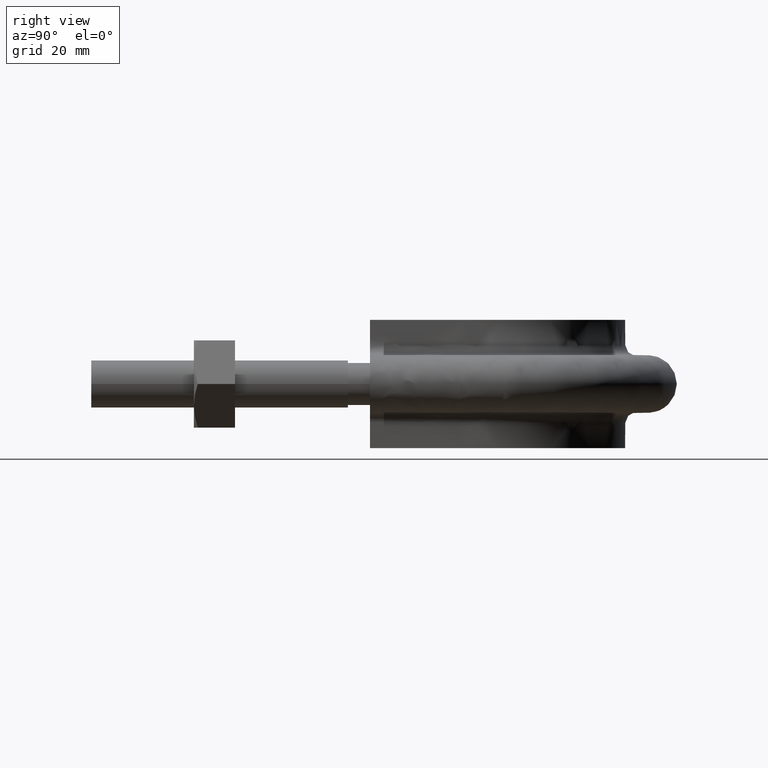
[diagram: clean part render]
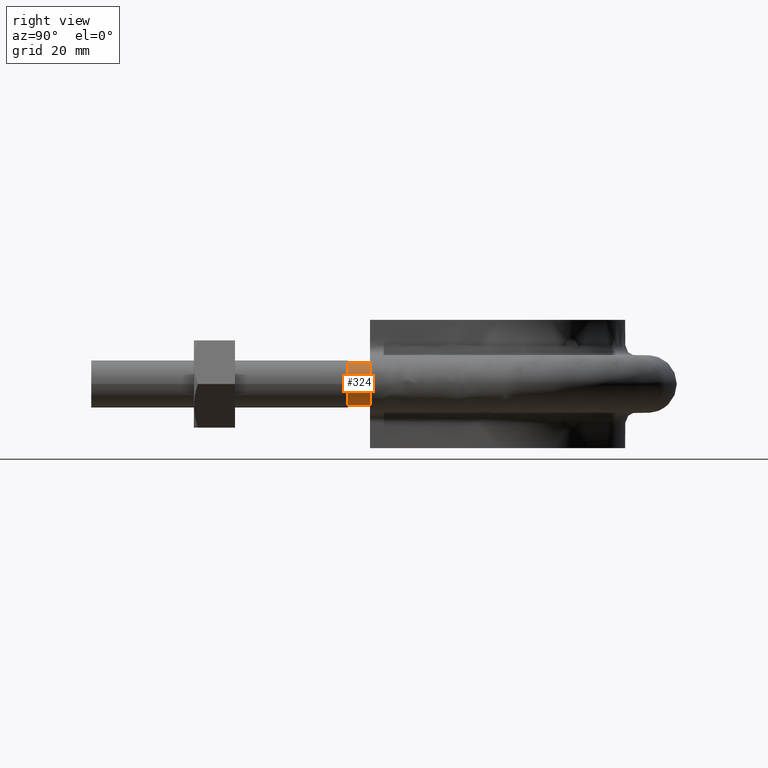
[diagram: same view with one face highlighted and labeled with its STEP entity id]
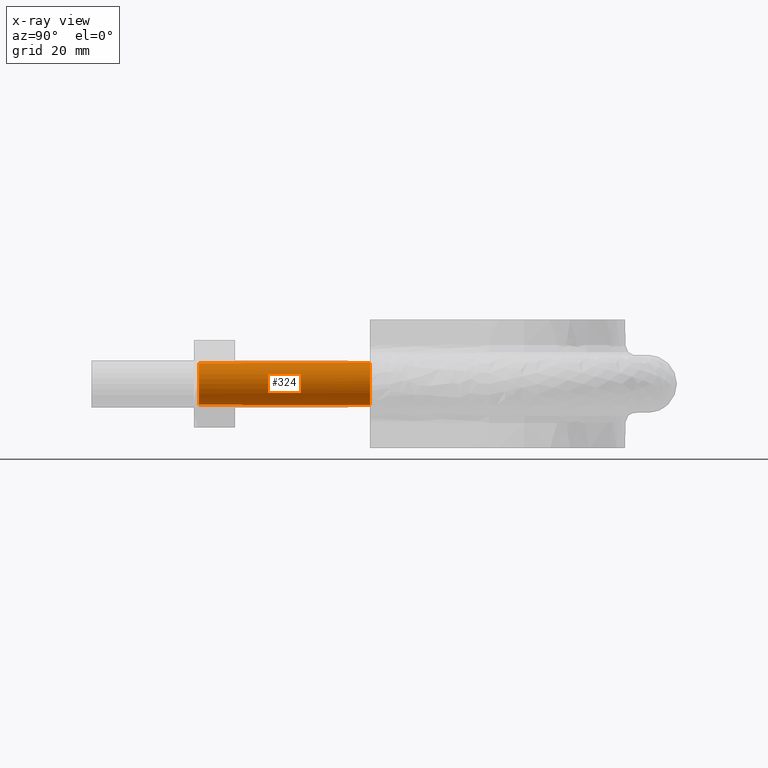
[diagram: x-ray of the same camera — body ghosted, the highlighted face saturated]
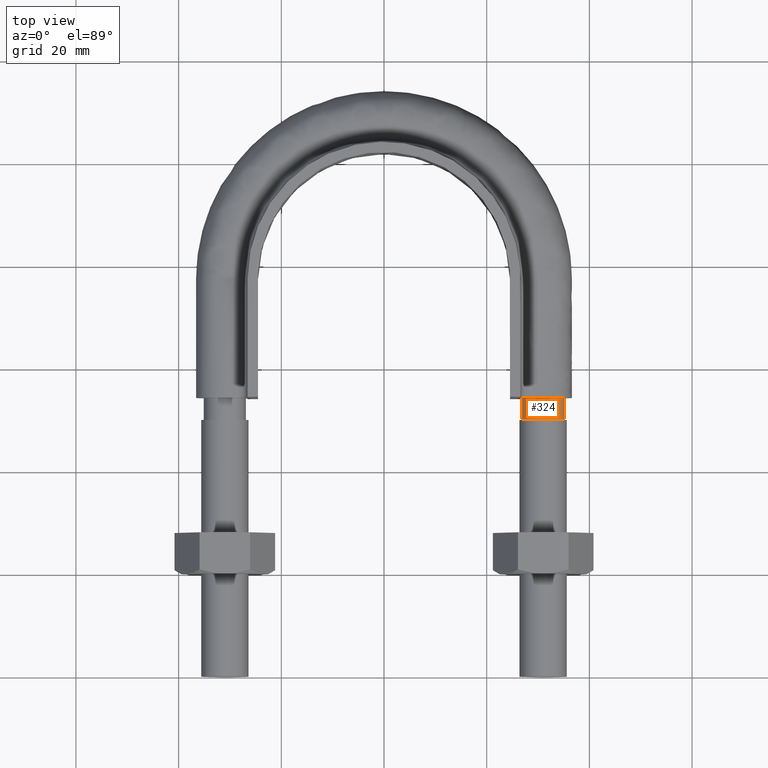
[diagram: same view with one face highlighted and labeled with its STEP entity id]
A machine part, right view. The second image highlights one B-rep face of the part: STEP entity #324.
The next image is the same camera in x-ray: the body ghosted, the highlighted face saturated — about 0% of this face is hidden behind the body in this view.
A second angle (top view) of the same face is appended — the face is thin or edge-on in the first view.
In plain terms, the highlighted cylindrical surface (bore or boss wall) has radius 4.1 mm, axis along (0, 1, 0).
Its self-contained STEP definition (entity closure, byte-faithful):
#324 = ADVANCED_FACE( '', ( #415, #416 ), #417, .T. );
#415 = FACE_OUTER_BOUND( '', #1265, .T. );
#416 = FACE_OUTER_BOUND( '', #1266, .T. );
#417 = CYLINDRICAL_SURFACE( '', #1267, 4.10000000000000 );
#1265 = EDGE_LOOP( '', ( #1635, #1636, #1637, #1638, #1639, #1640, #1641 ) );
#1266 = EDGE_LOOP( '', ( #1642 ) );
#1267 = AXIS2_PLACEMENT_3D( '', #1643, #1644, #1645 );
#1635 = ORIENTED_EDGE( '', *, *, #2129, .T. );
#1636 = ORIENTED_EDGE( '', *, *, #2130, .T. );
#1637 = ORIENTED_EDGE( '', *, *, #2131, .T. );
#1638 = ORIENTED_EDGE( '', *, *, #2125, .T. );
#1639 = ORIENTED_EDGE( '', *, *, #2132, .T. );
#1640 = ORIENTED_EDGE( '', *, *, #2133, .T. );
#1641 = ORIENTED_EDGE( '', *, *, #2134, .T. );
#1642 = ORIENTED_EDGE( '', *, *, #2135, .F. );
#1643 = CARTESIAN_POINT( '', ( 31.0000000000000, 54.3000000000000, 1.03938464280674E-014 ) );
#1644 = DIRECTION( '', ( 2.44921270764475E-016, 1.00000000000000, 3.06151588455594E-016 ) );
#1645 = DIRECTION( '', ( 1.00000000000000, -2.44921270764475E-016, -3.74915180455534E-032 ) );
#2125 = EDGE_CURVE( '', #2287, #2288, #2289, .T. );
#2129 = EDGE_CURVE( '', #2295, #2296, #2297, .T. );
#2130 = EDGE_CURVE( '', #2296, #2298, #2299, .T. );
#2131 = EDGE_CURVE( '', #2298, #2287, #2300, .T. );
#2132 = EDGE_CURVE( '', #2288, #2301, #2302, .T. );
#2133 = EDGE_CURVE( '', #2301, #2303, #2304, .T. );
#2134 = EDGE_CURVE( '', #2303, #2295, #2305, .T. );
#2135 = EDGE_CURVE( '', #2306, #2306, #2307, .T. );
#2287 = VERTEX_POINT( '', #2735 );
#2288 = VERTEX_POINT( '', #2736 );
#2289 = CIRCLE( '', #2737, 4.10000000000000 );
#2295 = VERTEX_POINT( '', #2749 );
#2296 = VERTEX_POINT( '', #2750 );
#2297 = CIRCLE( '', #2751, 4.10000000000000 );
#2298 = VERTEX_POINT( '', #2752 );
#2299 = CIRCLE( '', #2753, 4.10000000000000 );
#2300 = CIRCLE( '', #2754, 4.10000000000000 );
#2301 = VERTEX_POINT( '', #2755 );
#2302 = CIRCLE( '', #2756, 4.10000000000000 );
#2303 = VERTEX_POINT( '', #2757 );
#2304 = CIRCLE( '', #2758, 4.10000000000000 );
#2305 = CIRCLE( '', #2759, 4.10000000000000 );
#2306 = VERTEX_POINT( '', #2760 );
#2307 = CIRCLE( '', #2761, 4.10000000000000 );
#2735 = CARTESIAN_POINT( '', ( 26.9000000000000, 54.3000000000000, -2.58256698510804E-013 ) );
#2736 = CARTESIAN_POINT( '', ( 28.4436918123816, 54.3000000000000, -3.20550907812088 ) );
#2737 = AXIS2_PLACEMENT_3D( '', #3165, #3166, #3167 );
#2749 = CARTESIAN_POINT( '', ( 34.6939723584000, 54.3000000000000, 1.77892333038190 ) );
#2750 = CARTESIAN_POINT( '', ( 31.9123358292210, 54.3000000000000, 3.99720443994545 ) );
#2751 = AXIS2_PLACEMENT_3D( '', #3171, #3172, #3173 );
#2752 = CARTESIAN_POINT( '', ( 28.4436918123792, 54.3000000000000, 3.20550907811889 ) );
#2753 = AXIS2_PLACEMENT_3D( '', #3174, #3175, #3176 );
#2754 = AXIS2_PLACEMENT_3D( '', #3177, #3178, #3179 );
#2755 = CARTESIAN_POINT( '', ( 31.9123358292214, 54.3000000000000, -3.99720443994537 ) );
#2756 = AXIS2_PLACEMENT_3D( '', #3180, #3181, #3182 );
#2757 = CARTESIAN_POINT( '', ( 34.6939723583999, 54.3000000000000, -1.77892333038200 ) );
#2758 = AXIS2_PLACEMENT_3D( '', #3183, #3184, #3185 );
#2759 = AXIS2_PLACEMENT_3D( '', #3186, #3187, #3188 );
#2760 = CARTESIAN_POINT( '', ( 35.1000000000000, 21.0000000000000, 1.98998532496135E-016 ) );
#2761 = AXIS2_PLACEMENT_3D( '', #3189, #3190, #3191 );
#3165 = CARTESIAN_POINT( '', ( 31.0000000000000, 54.3000000000000, 1.03938464280674E-014 ) );
#3166 = DIRECTION( '', ( -2.44921270764475E-016, -1.00000000000000, -3.06151588455594E-016 ) );
#3167 = DIRECTION( '', ( 1.00000000000000, -2.44921270764475E-016, -3.16197804102265E-032 ) );
#3171 = CARTESIAN_POINT( '', ( 31.0000000000000, 54.3000000000000, 1.03938464280674E-014 ) );
#3172 = DIRECTION( '', ( -2.44921270764475E-016, -1.00000000000000, -3.06151588455594E-016 ) );
#3173 = DIRECTION( '', ( 1.00000000000000, -2.44921270764475E-016, -3.16197804102265E-032 ) );
#3174 = CARTESIAN_POINT( '', ( 31.0000000000000, 54.3000000000000, 1.03938464280674E-014 ) );
#3175 = DIRECTION( '', ( -2.44921270764475E-016, -1.00000000000000, -3.06151588455594E-016 ) );
#3176 = DIRECTION( '', ( 1.00000000000000, -2.44921270764475E-016, -3.16197804102265E-032 ) );
#3177 = CARTESIAN_POINT( '', ( 31.0000000000000, 54.3000000000000, 1.03938464280674E-014 ) );
#3178 = DIRECTION( '', ( -2.44921270764475E-016, -1.00000000000000, -3.06151588455594E-016 ) );
#3179 = DIRECTION( '', ( 1.00000000000000, -2.44921270764475E-016, -3.16197804102265E-032 ) );
#3180 = CARTESIAN_POINT( '', ( 31.0000000000000, 54.3000000000000, 1.03938464280674E-014 ) );
#3181 = DIRECTION( '', ( -2.44921270764475E-016, -1.00000000000000, -3.06151588455594E-016 ) );
#3182 = DIRECTION( '', ( 1.00000000000000, -2.44921270764475E-016, -3.16197804102265E-032 ) );
#3183 = CARTESIAN_POINT( '', ( 31.0000000000000, 54.3000000000000, 1.03938464280674E-014 ) );
#3184 = DIRECTION( '', ( -2.44921270764475E-016, -1.00000000000000, -3.06151588455594E-016 ) );
#3185 = DIRECTION( '', ( 1.00000000000000, -2.44921270764475E-016, -3.16197804102265E-032 ) );
#3186 = CARTESIAN_POINT( '', ( 31.0000000000000, 54.3000000000000, 1.03938464280674E-014 ) );
#3187 = DIRECTION( '', ( -2.44921270764475E-016, -1.00000000000000, -3.06151588455594E-016 ) );
#3188 = DIRECTION( '', ( 1.00000000000000, -2.44921270764475E-016, -3.16197804102265E-032 ) );
#3189 = CARTESIAN_POINT( '', ( 31.0000000000000, 21.0000000000000, 1.98998532496135E-016 ) );
#3190 = DIRECTION( '', ( -2.44921270764475E-016, -1.00000000000000, -3.06151588455594E-016 ) );
#3191 = DIRECTION( '', ( 1.00000000000000, -2.44921270764475E-016, -3.16197804102265E-032 ) );